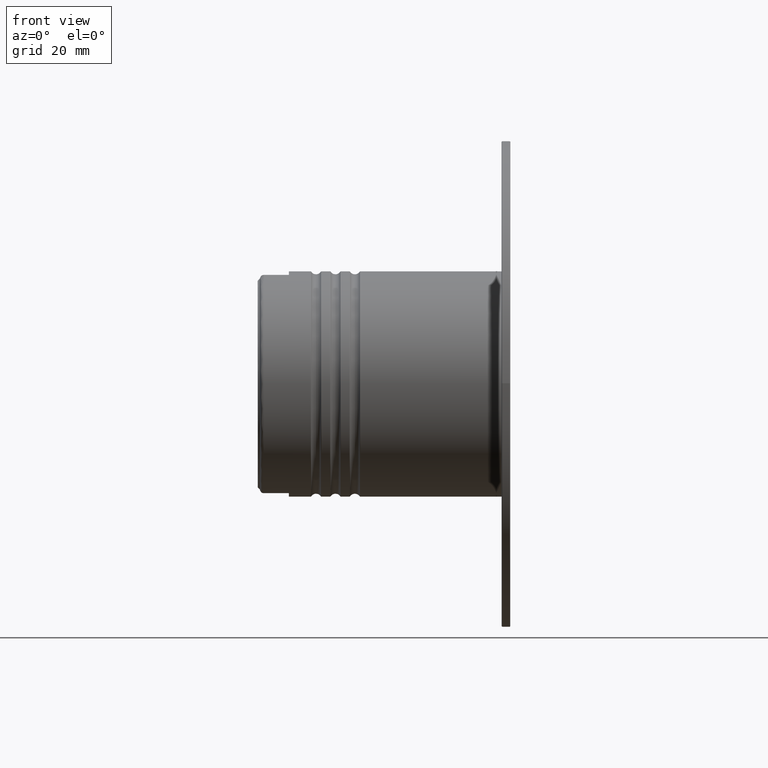
[diagram: clean part render]
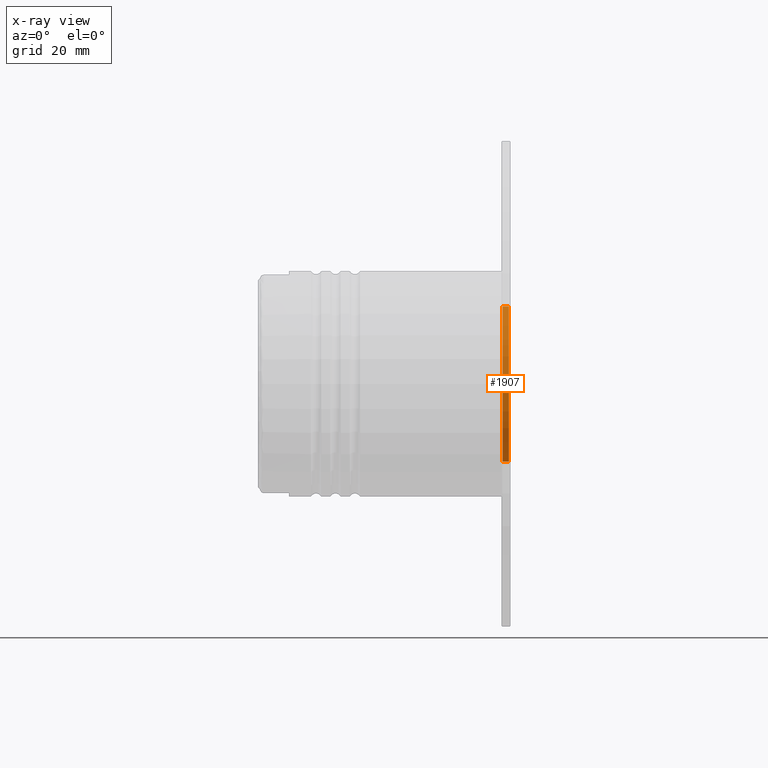
[diagram: x-ray — body ghosted, one internal face saturated and labeled with its STEP entity id]
A machine part, front view, then the same camera in x-ray: the body is ghosted and one INTERNAL B-rep face — a face not visible from any outside direction — is saturated and labeled: STEP entity #1907.
In plain terms, the highlighted cylindrical surface (partial cylindrical patch) has radius 20 mm, axis along (1, 0, 0).
Its self-contained STEP definition (entity closure, byte-faithful):
#1 = CARTESIAN_POINT ( 'NONE',  ( 0.0000000000000000000, 2.449293598294706513E-15, 20.00000000000000000 ) ) ;
#99 = ORIENTED_EDGE ( 'NONE', *, *, #910, .F. ) ;
#214 = CARTESIAN_POINT ( 'NONE',  ( -1.699999999999999956, 0.0000000000000000000, 0.0000000000000000000 ) ) ;
#344 = VECTOR ( 'NONE', #3648, 1000.000000000000000 ) ;
#435 = EDGE_CURVE ( 'NONE', #1489, #5654, #4502, .T. ) ;
#631 = VERTEX_POINT ( 'NONE', #1351 ) ;
#686 = CARTESIAN_POINT ( 'NONE',  ( 0.0000000000000000000, 0.0000000000000000000, 0.0000000000000000000 ) ) ;
#874 = CIRCLE ( 'NONE', #4537, 20.00000000000000000 ) ;
#910 = EDGE_CURVE ( 'NONE', #2749, #631, #5852, .T. ) ;
#1244 = DIRECTION ( 'NONE',  ( 1.000000000000000000, -0.0000000000000000000, -0.0000000000000000000 ) ) ;
#1266 = DIRECTION ( 'NONE',  ( 1.000000000000000000, -0.0000000000000000000, -0.0000000000000000000 ) ) ;
#1331 = CARTESIAN_POINT ( 'NONE',  ( -1.699999999999999956, 0.0000000000000000000, -20.00000000000000000 ) ) ;
#1351 = CARTESIAN_POINT ( 'NONE',  ( -0.1000000000000000056, 2.449293598294706513E-15, 20.00000000000000000 ) ) ;
#1425 = EDGE_CURVE ( 'NONE', #2749, #1489, #2384, .T. ) ;
#1460 = ORIENTED_EDGE ( 'NONE', *, *, #1425, .T. ) ;
#1489 = VERTEX_POINT ( 'NONE', #1331 ) ;
#1907 = ADVANCED_FACE ( 'NONE', ( #6636 ), #2236, .T. ) ;
#2090 = AXIS2_PLACEMENT_3D ( 'NONE', #214, #1266, #3857 ) ;
#2236 = CYLINDRICAL_SURFACE ( 'NONE', #2666, 20.00000000000000000 ) ;
#2384 = CIRCLE ( 'NONE', #2090, 20.00000000000000000 ) ;
#2666 = AXIS2_PLACEMENT_3D ( 'NONE', #686, #2795, #4287 ) ;
#2749 = VERTEX_POINT ( 'NONE', #4168 ) ;
#2770 = EDGE_LOOP ( 'NONE', ( #99, #1460, #3203, #3664 ) ) ;
#2795 = DIRECTION ( 'NONE',  ( 1.000000000000000000, -0.0000000000000000000, -0.0000000000000000000 ) ) ;
#3203 = ORIENTED_EDGE ( 'NONE', *, *, #435, .T. ) ;
#3225 = DIRECTION ( 'NONE',  ( 1.000000000000000000, -0.0000000000000000000, -0.0000000000000000000 ) ) ;
#3616 = VECTOR ( 'NONE', #3225, 1000.000000000000000 ) ;
#3648 = DIRECTION ( 'NONE',  ( 1.000000000000000000, -0.0000000000000000000, -0.0000000000000000000 ) ) ;
#3664 = ORIENTED_EDGE ( 'NONE', *, *, #5694, .F. ) ;
#3857 = DIRECTION ( 'NONE',  ( 0.0000000000000000000, 0.0000000000000000000, -1.000000000000000000 ) ) ;
#4168 = CARTESIAN_POINT ( 'NONE',  ( -1.699999999999999956, 2.449293598294706513E-15, 20.00000000000000000 ) ) ;
#4287 = DIRECTION ( 'NONE',  ( 0.0000000000000000000, 0.0000000000000000000, -1.000000000000000000 ) ) ;
#4502 = LINE ( 'NONE', #5170, #3616 ) ;
#4537 = AXIS2_PLACEMENT_3D ( 'NONE', #6381, #1244, #5360 ) ;
#5170 = CARTESIAN_POINT ( 'NONE',  ( 0.0000000000000000000, 0.0000000000000000000, -20.00000000000000000 ) ) ;
#5360 = DIRECTION ( 'NONE',  ( 0.0000000000000000000, 0.0000000000000000000, -1.000000000000000000 ) ) ;
#5654 = VERTEX_POINT ( 'NONE', #5917 ) ;
#5694 = EDGE_CURVE ( 'NONE', #631, #5654, #874, .T. ) ;
#5852 = LINE ( 'NONE', #1, #344 ) ;
#5917 = CARTESIAN_POINT ( 'NONE',  ( -0.1000000000000000056, 0.0000000000000000000, -20.00000000000000000 ) ) ;
#6381 = CARTESIAN_POINT ( 'NONE',  ( -0.1000000000000000056, 0.0000000000000000000, 0.0000000000000000000 ) ) ;
#6636 = FACE_OUTER_BOUND ( 'NONE', #2770, .T. ) ;